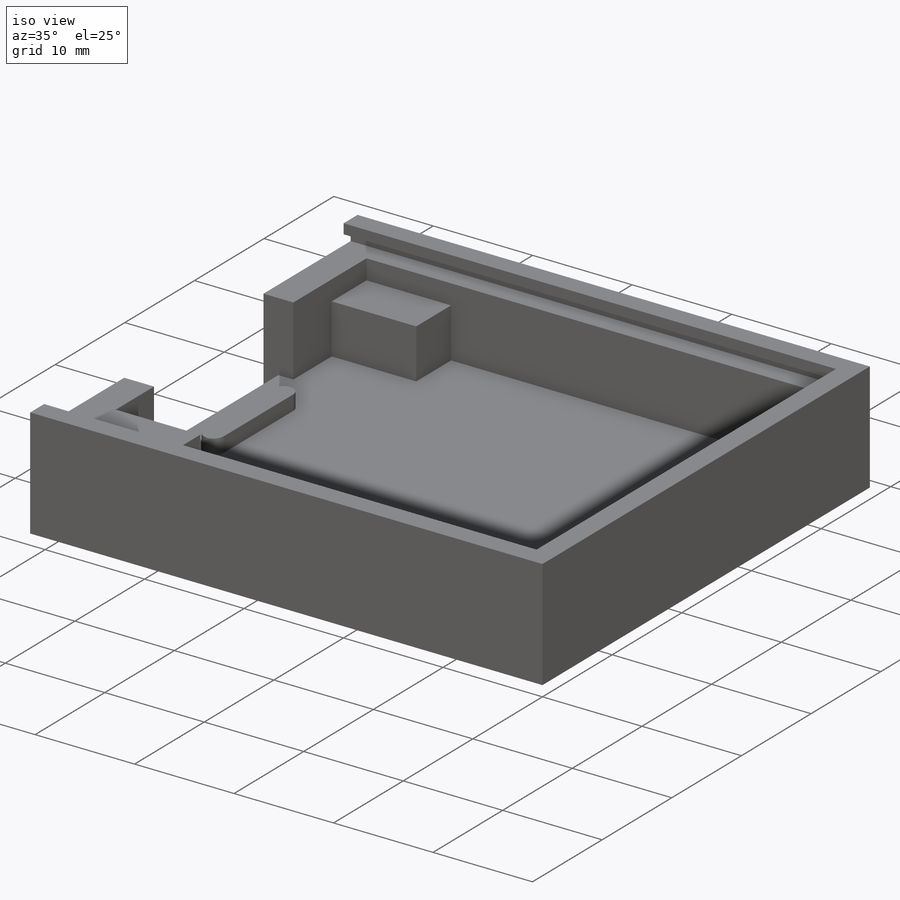
[diagram: iso view]
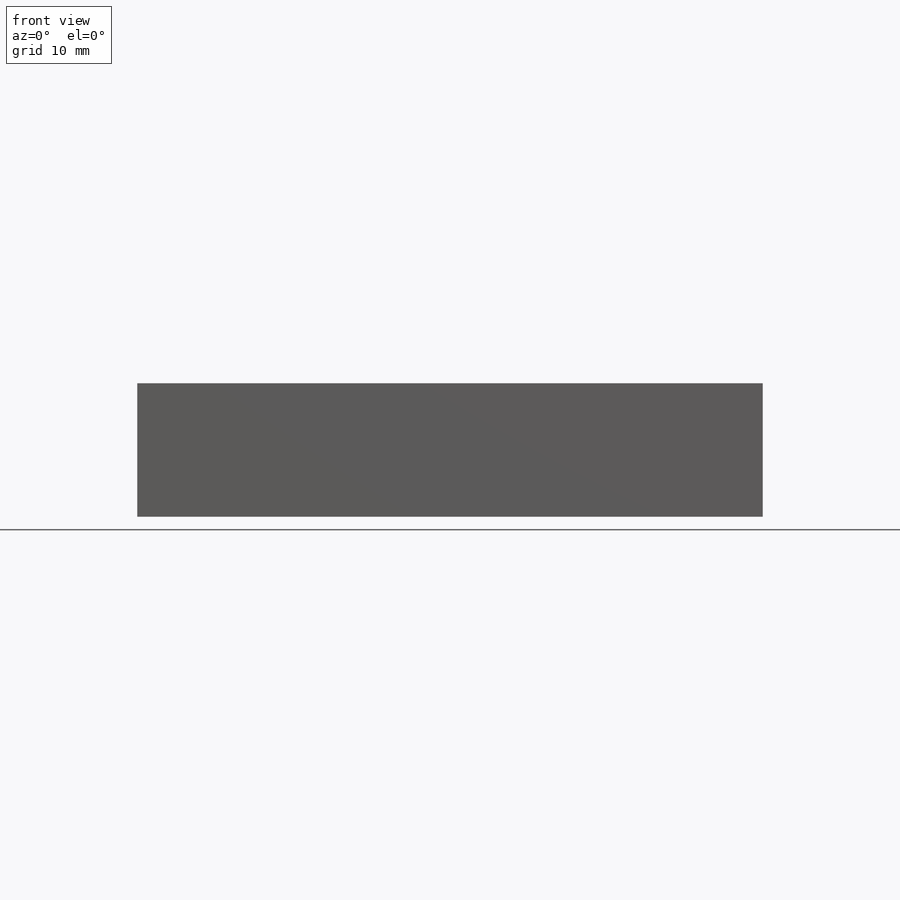
[diagram: front view]
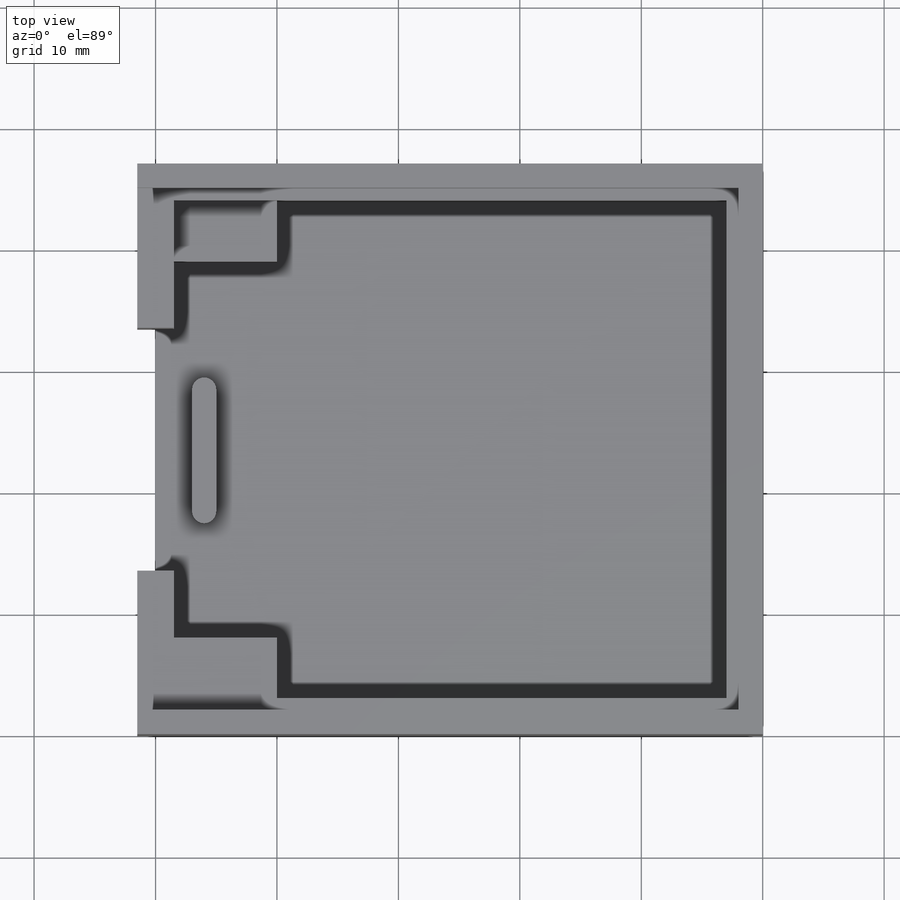
[diagram: top view]
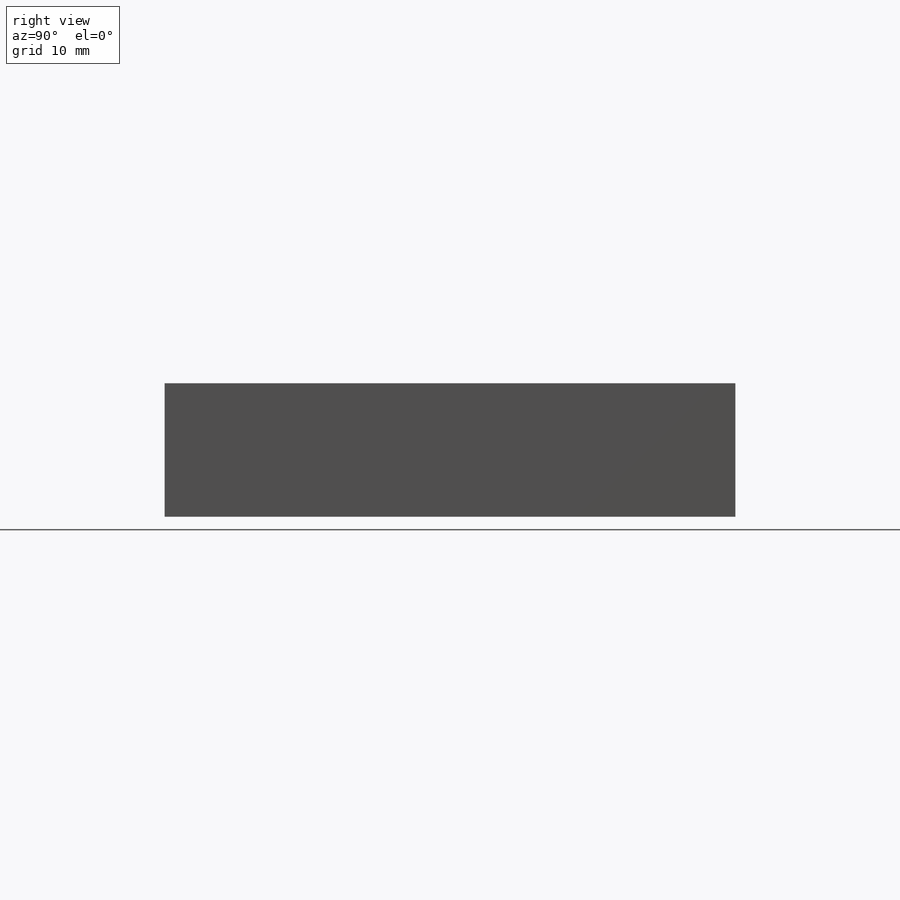
[diagram: right view]
SOLIDWORKS PART (.sldprt)
format: sldprt  version: not decoded by parser v0  size: 423,424 bytes
history: native  units: mm
features: sketch x12, extrude x9, plane x3, cut_extrude x3, material x1 + 1 further entry (+8 scaffold rows collapsed)
feature tree (37):
  scaffold x8  (default folders/planes/origin — collapsed)
  material  "Material <sin especificar>"
  "Anotaciones"  RD1=3mm
  plane  "Alzado"
  plane  "Planta"
  plane  "Vista lateral"
  sketch  "Croquis1"  dims[D1=51.5mm D2=47.0mm]
  extrude  "Saliente-Extruir1"  Depth=2mm
  sketch  "Croquis2"  dims[c1.D1=5.0mm c1.D2=7.0mm c2.D1=10.0mm c2.D3=4.0mm c3.D1=1.5mm c3.D2=10.0mm c3.D3=2.0mm c3.D4=12.0mm c3.D5=6.5mm c4.D2=5.5mm c4.D5=~12.216293mm c4.D6=5.5mm c4.D7=6.5mm c5.D6=6.5mm c5.D7=6.5mm c6.D6=5.5mm c6.D7=5.5mm c7.D6=4.5mm c7.D7=5.5mm c8.D6=5.5mm c8.D2=5.5mm]
  extrude  "Saliente-Extruir11"  Depth=1.5mm
  sketch  "Croquis3"  dims[c1.D1=1.0mm c1.D2=1.0mm c1.D3=1.0mm c2.D1=2.0mm c2.D2=2.0mm c2.D3=2.0mm c3.D1=3.0mm]
  extrude  "Saliente-Extruir10"  Depth=7mm
  sketch  "Croquis4"  dims[D1=2.0mm D2=20.0mm]
  cut_extrude  "Cortar-Extruir3"  Depth=7mm
  sketch  "Croquis5"  dims[D1=5.0mm D2=11.5mm]
  extrude  "Saliente-Extruir12"  Depth=7mm
  sketch  "Croquis6"  dims[D1=1.0mm]
  cut_extrude  "Cortar-Extruir2"  [1 undecoded]
  sketch  "Croquis8"  dims[D1=5.0mm D2=11.5mm]
  extrude  "Saliente-Extruir13"  Depth=5mm
  sketch  "Croquis9"  dims[D1=1.0mm D2=1.0mm D3=1.0mm]
  extrude  "Saliente-Extruir14"  Depth=2mm
  sketch  "Croquis10"
  extrude  "Saliente-Extruir15"  Depth=1mm
  sketch  "Croquis11"
  extrude  "Saliente-Extruir16"  Depth=1mm
  sketch  "Croquis12"
  extrude  "Saliente-Extruir17"  Depth=1mm
  sketch  "Croquis13"
  cut_extrude  "Cortar-Extruir4"  [1 undecoded]
decode coverage: 18 of 24 modeling features carry decoded parameters; 1 rows unclassified (native names shown)
note: ~ marks probable driven/reference dimensions
note: 2 parameter values undecoded
note: suppression state not decoded; provenance and decode notes live in map.json
